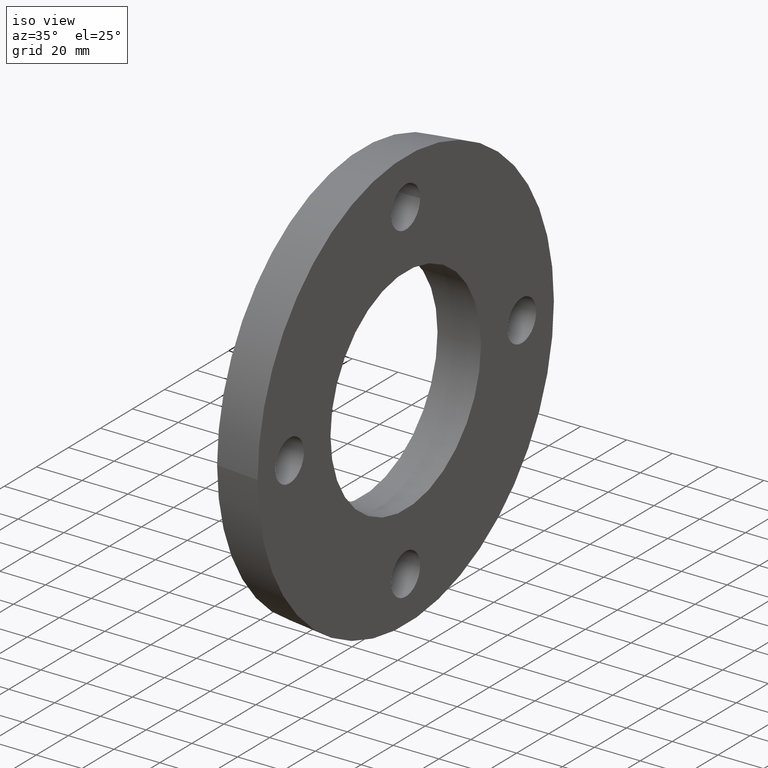
[diagram: clean part render]
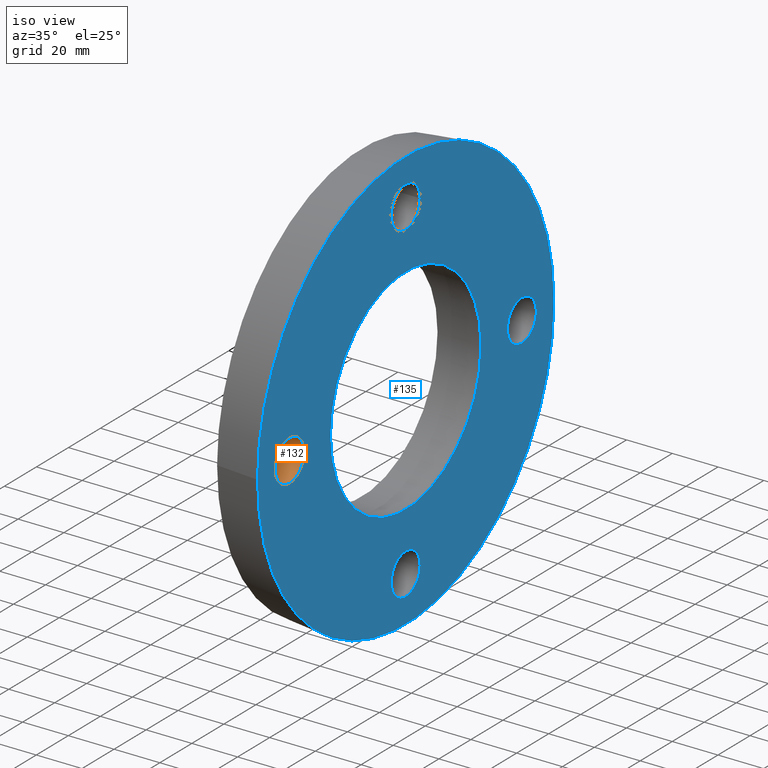
[diagram: same view with the hole feature highlighted: cylindrical wall and planar end face, labeled with their STEP entity ids]
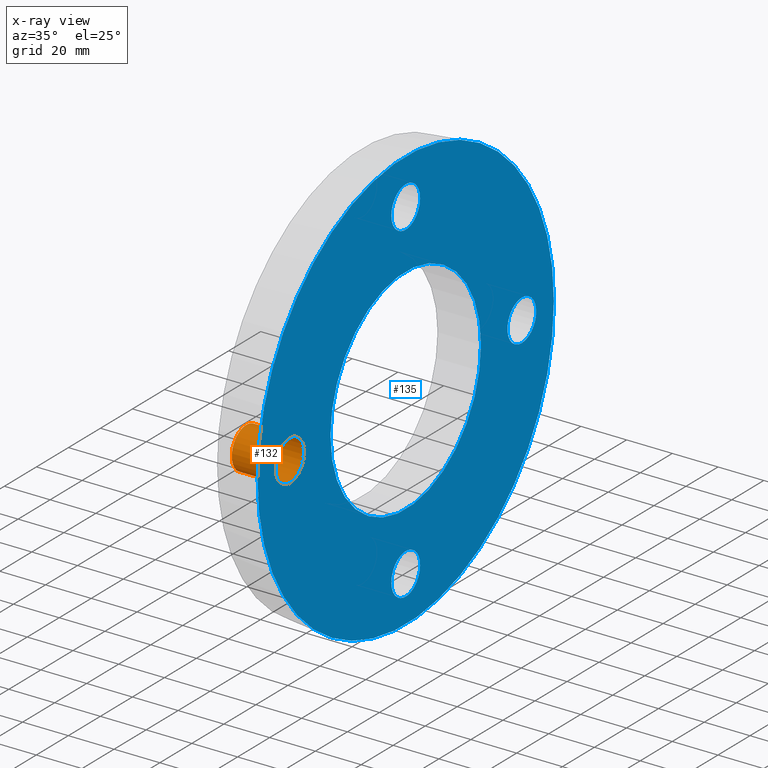
[diagram: x-ray of the same camera — body ghosted, the hole faces saturated]
A machine part, iso view. The highlighted faces form one hole feature of diameter 18 mm: the cylindrical wall (entity #132, orange) and its adjacent planar end face (entity #135, blue) — they share a circular edge in the B-rep.
The next image is the same camera in x-ray (body ghosted, the hole faces saturated) — the bore reads through the body.
Wall:
#19=FACE_BOUND('',#45,.T.);
#35=FACE_OUTER_BOUND('',#44,.T.);
#44=EDGE_LOOP('',(#104));
#45=EDGE_LOOP('',(#105));
#68=CIRCLE('',#145,9.);
#69=CIRCLE('',#146,9.);
#80=VERTEX_POINT('',#210);
#81=VERTEX_POINT('',#212);
#92=EDGE_CURVE('',#80,#80,#68,.T.);
#93=EDGE_CURVE('',#81,#81,#69,.T.);
#104=ORIENTED_EDGE('',*,*,#92,.F.);
#105=ORIENTED_EDGE('',*,*,#93,.F.);
#127=CYLINDRICAL_SURFACE('',#144,9.);
#132=ADVANCED_FACE('',(#35,#19),#127,.F.);
#144=AXIS2_PLACEMENT_3D('',#209,#169,#170);
#145=AXIS2_PLACEMENT_3D('',#211,#171,#172);
#146=AXIS2_PLACEMENT_3D('',#213,#173,#174);
#169=DIRECTION('center_axis',(-1.,0.,0.));
#170=DIRECTION('ref_axis',(0.,1.22464679914735E-16,-1.));
#171=DIRECTION('center_axis',(1.,0.,0.));
#172=DIRECTION('ref_axis',(0.,1.22464679914735E-16,-1.));
#173=DIRECTION('center_axis',(-1.,0.,0.));
#174=DIRECTION('ref_axis',(0.,1.22464679914735E-16,-1.));
#209=CARTESIAN_POINT('Origin',(9.5,-72.5,-8.87868929381831E-15));
#210=CARTESIAN_POINT('',(-9.5,-72.5,8.99999999999999));
#211=CARTESIAN_POINT('Origin',(-9.5,-72.5,-8.87868929381831E-15));
#212=CARTESIAN_POINT('',(9.5,-72.5,8.99999999999999));
#213=CARTESIAN_POINT('Origin',(9.5,-72.5,-8.87868929381831E-15));
End face:
#16=PLANE('',#153);
#22=FACE_BOUND('',#51,.T.);
#23=FACE_BOUND('',#52,.T.);
#24=FACE_BOUND('',#53,.T.);
#25=FACE_BOUND('',#54,.T.);
#26=FACE_BOUND('',#55,.T.);
#38=FACE_OUTER_BOUND('',#50,.T.);
#50=EDGE_LOOP('',(#110));
#51=EDGE_LOOP('',(#111));
#52=EDGE_LOOP('',(#112));
#53=EDGE_LOOP('',(#113));
#54=EDGE_LOOP('',(#114));
#55=EDGE_LOOP('',(#115));
#67=CIRCLE('',#143,9.);
#69=CIRCLE('',#146,9.);
#71=CIRCLE('',#149,9.);
#73=CIRCLE('',#152,9.);
#74=CIRCLE('',#154,92.5);
#75=CIRCLE('',#155,47.);
#79=VERTEX_POINT('',#207);
#81=VERTEX_POINT('',#212);
#83=VERTEX_POINT('',#217);
#85=VERTEX_POINT('',#222);
#86=VERTEX_POINT('',#225);
#87=VERTEX_POINT('',#227);
#91=EDGE_CURVE('',#79,#79,#67,.T.);
#93=EDGE_CURVE('',#81,#81,#69,.T.);
#95=EDGE_CURVE('',#83,#83,#71,.T.);
#97=EDGE_CURVE('',#85,#85,#73,.T.);
#98=EDGE_CURVE('',#86,#86,#74,.T.);
#99=EDGE_CURVE('',#87,#87,#75,.T.);
#110=ORIENTED_EDGE('',*,*,#98,.F.);
#111=ORIENTED_EDGE('',*,*,#91,.T.);
#112=ORIENTED_EDGE('',*,*,#93,.T.);
#113=ORIENTED_EDGE('',*,*,#95,.T.);
#114=ORIENTED_EDGE('',*,*,#97,.T.);
#115=ORIENTED_EDGE('',*,*,#99,.T.);
#135=ADVANCED_FACE('',(#38,#22,#23,#24,#25,#26),#16,.T.);
#143=AXIS2_PLACEMENT_3D('',#208,#167,#168);
#146=AXIS2_PLACEMENT_3D('',#213,#173,#174);
#149=AXIS2_PLACEMENT_3D('',#218,#179,#180);
#152=AXIS2_PLACEMENT_3D('',#223,#185,#186);
#153=AXIS2_PLACEMENT_3D('',#224,#187,#188);
#154=AXIS2_PLACEMENT_3D('',#226,#189,#190);
#155=AXIS2_PLACEMENT_3D('',#228,#191,#192);
#167=DIRECTION('center_axis',(-1.,0.,0.));
#168=DIRECTION('ref_axis',(0.,-1.,-1.83697019872103E-16));
#173=DIRECTION('center_axis',(-1.,0.,0.));
#174=DIRECTION('ref_axis',(0.,1.22464679914735E-16,-1.));
#179=DIRECTION('center_axis',(-1.,0.,0.));
#180=DIRECTION('ref_axis',(0.,1.,6.12323399573677E-17));
#185=DIRECTION('center_axis',(-1.,0.,0.));
#186=DIRECTION('ref_axis',(0.,0.,1.));
#187=DIRECTION('center_axis',(1.,0.,0.));
#188=DIRECTION('ref_axis',(0.,0.,-1.));
#189=DIRECTION('center_axis',(-1.,0.,0.));
#190=DIRECTION('ref_axis',(0.,0.,1.));
#191=DIRECTION('center_axis',(-1.,0.,0.));
#192=DIRECTION('ref_axis',(0.,0.,1.));
#207=CARTESIAN_POINT('',(9.5,8.99999999999999,72.5));
#208=CARTESIAN_POINT('Origin',(9.5,-1.33180339407275E-14,72.5));
#212=CARTESIAN_POINT('',(9.5,-72.5,8.99999999999999));
#213=CARTESIAN_POINT('Origin',(9.5,-72.5,-8.87868929381831E-15));
#217=CARTESIAN_POINT('',(9.5,-9.,-72.5));
#218=CARTESIAN_POINT('Origin',(9.5,4.43934464690916E-15,-72.5));
#222=CARTESIAN_POINT('',(9.5,72.5,-9.));
#223=CARTESIAN_POINT('Origin',(9.5,72.5,0.));
#224=CARTESIAN_POINT('Origin',(9.5,-92.5,0.));
#225=CARTESIAN_POINT('',(9.5,-92.5,0.));
#226=CARTESIAN_POINT('Origin',(9.5,0.,0.));
#227=CARTESIAN_POINT('',(9.5,-47.,0.));
#228=CARTESIAN_POINT('Origin',(9.5,0.,0.));